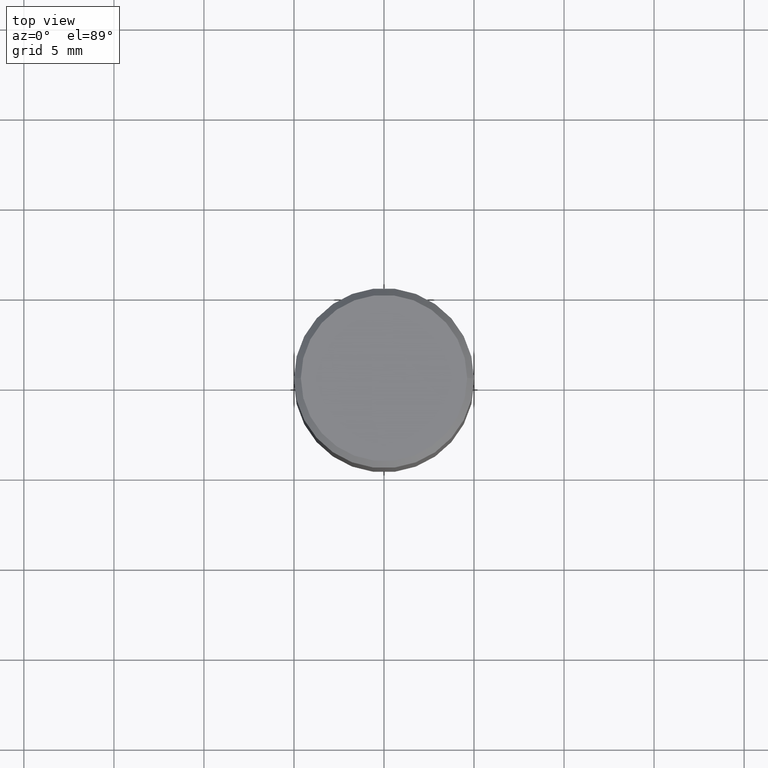
[diagram: clean part render]
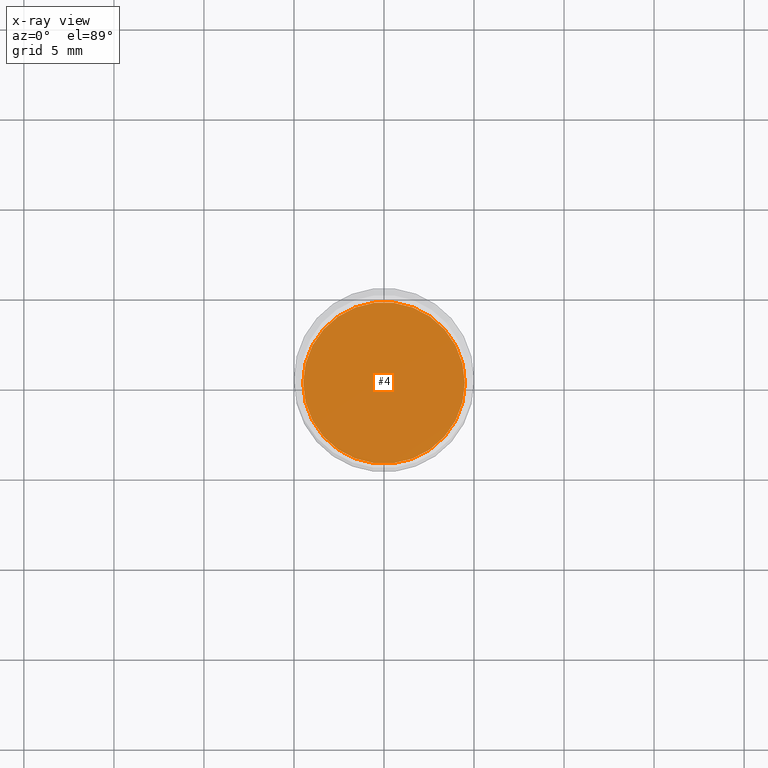
[diagram: x-ray — body ghosted, one internal face saturated and labeled with its STEP entity id]
A machine part, top view, then the same camera in x-ray: the body is ghosted and one INTERNAL B-rep face — a face not visible from any outside direction — is saturated and labeled: STEP entity #4.
In plain terms, the highlighted planar face has unit normal (-0, 0, 1).
Its self-contained STEP definition (entity closure, byte-faithful):
#4 = ADVANCED_FACE ( 'NONE', ( #147 ), #457, .F. ) ;
#33 = EDGE_CURVE ( 'NONE', #172, #384, #299, .T. ) ;
#36 = ORIENTED_EDGE ( 'NONE', *, *, #251, .F. ) ;
#66 = DIRECTION ( 'NONE',  ( 1.000000000000000000, -6.982962677686267499E-15, 0.000000000000000000 ) ) ;
#75 = AXIS2_PLACEMENT_3D ( 'NONE', #290, #151, #225 ) ;
#111 = AXIS2_PLACEMENT_3D ( 'NONE', #445, #138, #66 ) ;
#120 = EDGE_LOOP ( 'NONE', ( #260, #36 ) ) ;
#138 = DIRECTION ( 'NONE',  ( -2.445468806185136597E-29, 3.491481338843145583E-15, 1.000000000000000000 ) ) ;
#140 = AXIS2_PLACEMENT_3D ( 'NONE', #440, #383, #460 ) ;
#147 = FACE_OUTER_BOUND ( 'NONE', #120, .T. ) ;
#151 = DIRECTION ( 'NONE',  ( -2.438088387897960049E-29, 3.491481338843145188E-15, 1.000000000000000000 ) ) ;
#172 = VERTEX_POINT ( 'NONE', #355 ) ;
#225 = DIRECTION ( 'NONE',  ( 1.000000000000000000, -6.982962677686265922E-15, 4.876176775795935793E-29 ) ) ;
#251 = EDGE_CURVE ( 'NONE', #384, #172, #388, .T. ) ;
#260 = ORIENTED_EDGE ( 'NONE', *, *, #33, .F. ) ;
#290 = CARTESIAN_POINT ( 'NONE',  ( 1.550182676240758652E-29, -2.213250020692670577E-15, -0.6339000000000001300 ) ) ;
#299 = CIRCLE ( 'NONE', #140, 0.1766500000000000015 ) ;
#339 = CARTESIAN_POINT ( 'NONE',  ( -0.1766500000000000015, -9.554270507983421899E-16, -0.6339000000000001300 ) ) ;
#355 = CARTESIAN_POINT ( 'NONE',  ( 0.1766500000000000015, -3.446790377705949964E-15, -0.6339000000000001300 ) ) ;
#383 = DIRECTION ( 'NONE',  ( -2.445468806185136597E-29, 3.491481338843145583E-15, 1.000000000000000000 ) ) ;
#384 = VERTEX_POINT ( 'NONE', #339 ) ;
#388 = CIRCLE ( 'NONE', #111, 0.1766500000000000015 ) ;
#440 = CARTESIAN_POINT ( 'NONE',  ( 1.550182676240758652E-29, -2.213250020692670577E-15, -0.6339000000000001300 ) ) ;
#445 = CARTESIAN_POINT ( 'NONE',  ( 1.550182676240758652E-29, -2.213250020692670577E-15, -0.6339000000000001300 ) ) ;
#457 = PLANE ( 'NONE',  #75 ) ;
#460 = DIRECTION ( 'NONE',  ( 1.000000000000000000, -6.982962677686267499E-15, 0.000000000000000000 ) ) ;